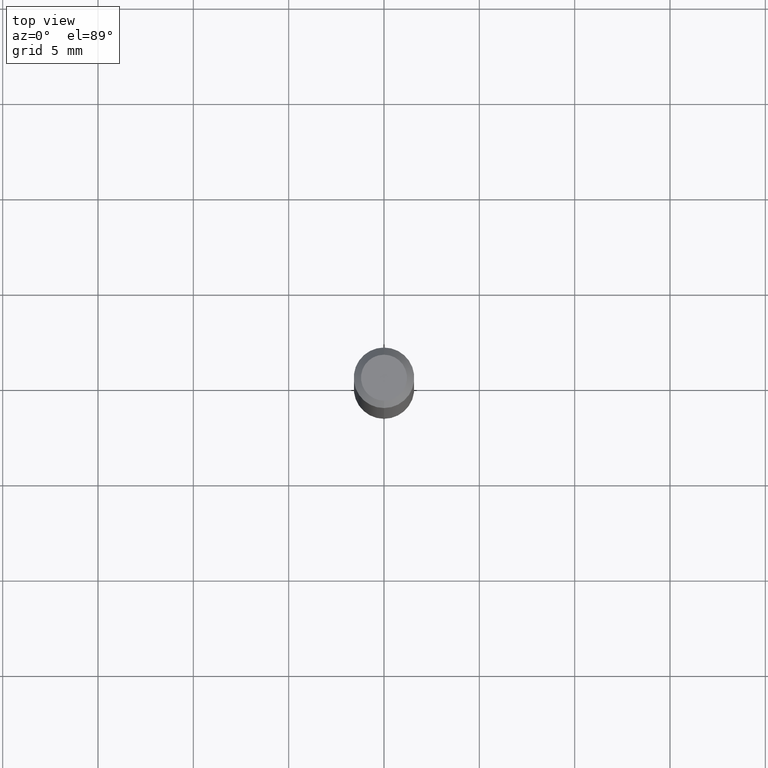
[diagram: clean part render]
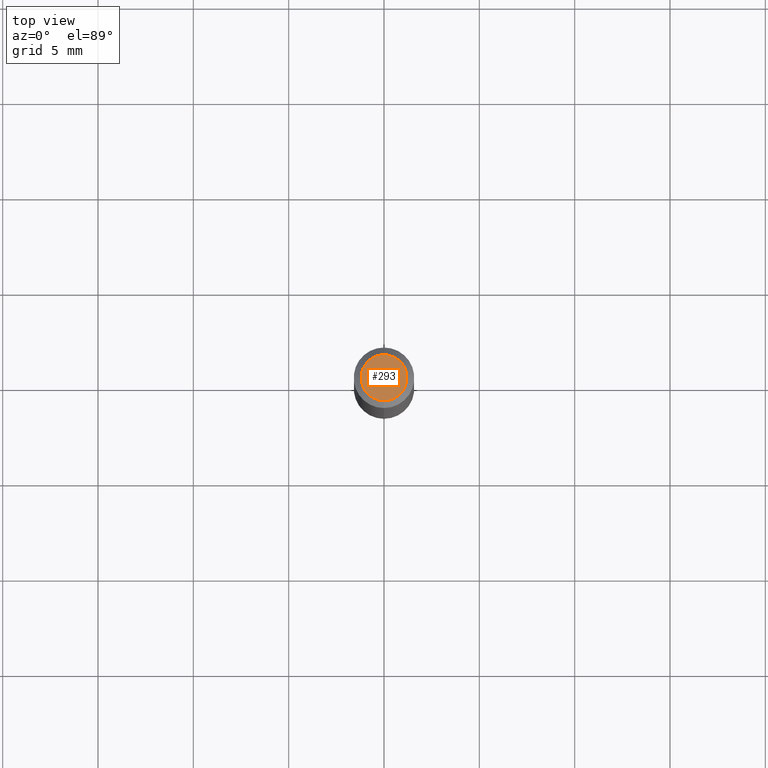
[diagram: same view with one face highlighted and labeled with its STEP entity id]
A machine part, top view. The second image highlights one B-rep face of the part: STEP entity #293.
In plain terms, the highlighted planar face has unit normal (0, -0, -1).
Its self-contained STEP definition (entity closure, byte-faithful):
#4 = DIRECTION ( 'NONE',  ( -6.982962677686266711E-15, -1.000000000000000000, 3.491480369690895129E-15 ) ) ;
#19 = DIRECTION ( 'NONE',  ( -2.445469482940536333E-29, 3.491480369690894735E-15, 1.000000000000000000 ) ) ;
#26 = DIRECTION ( 'NONE',  ( 2.445469482940536053E-29, -3.491480369690894735E-15, -1.000000000000000000 ) ) ;
#46 = DIRECTION ( 'NONE',  ( -6.982962677686266711E-15, -1.000000000000000000, 3.491480369690895129E-15 ) ) ;
#59 = FACE_OUTER_BOUND ( 'NONE', #233, .T. ) ;
#89 = VERTEX_POINT ( 'NONE', #358 ) ;
#105 = CIRCLE ( 'NONE', #270, 0.04749999999999999362 ) ;
#164 = ORIENTED_EDGE ( 'NONE', *, *, #229, .T. ) ;
#170 = CIRCLE ( 'NONE', #199, 0.04749999999999999362 ) ;
#188 = AXIS2_PLACEMENT_3D ( 'NONE', #417, #26, #386 ) ;
#199 = AXIS2_PLACEMENT_3D ( 'NONE', #362, #19, #46 ) ;
#223 = EDGE_CURVE ( 'NONE', #89, #450, #105, .T. ) ;
#229 = EDGE_CURVE ( 'NONE', #450, #89, #170, .T. ) ;
#233 = EDGE_LOOP ( 'NONE', ( #298, #164 ) ) ;
#270 = AXIS2_PLACEMENT_3D ( 'NONE', #313, #471, #4 ) ;
#293 = ADVANCED_FACE ( 'NONE', ( #59 ), #448, .F. ) ;
#298 = ORIENTED_EDGE ( 'NONE', *, *, #223, .T. ) ;
#313 = CARTESIAN_POINT ( 'NONE',  ( 2.166775374745515468E-46, -3.093579265342873094E-32, -8.860365626563013371E-18 ) ) ;
#325 = CARTESIAN_POINT ( 'NONE',  ( -3.773273898774340269E-16, -0.04749999999999999362, 1.569849519337544931E-16 ) ) ;
#358 = CARTESIAN_POINT ( 'NONE',  ( 3.840629472727447874E-16, 0.04749999999999999362, -1.747056831868805136E-16 ) ) ;
#362 = CARTESIAN_POINT ( 'NONE',  ( 2.166775374745515468E-46, -3.093579265342873094E-32, -8.860365626563013371E-18 ) ) ;
#386 = DIRECTION ( 'NONE',  ( 6.982962677686265922E-15, 1.000000000000000000, -3.491480369690894735E-15 ) ) ;
#417 = CARTESIAN_POINT ( 'NONE',  ( 3.316907271900976096E-16, 0.04749999999999999362, -1.702755003735990023E-16 ) ) ;
#448 = PLANE ( 'NONE',  #188 ) ;
#450 = VERTEX_POINT ( 'NONE', #325 ) ;
#471 = DIRECTION ( 'NONE',  ( -2.445469482940536333E-29, 3.491480369690894735E-15, 1.000000000000000000 ) ) ;